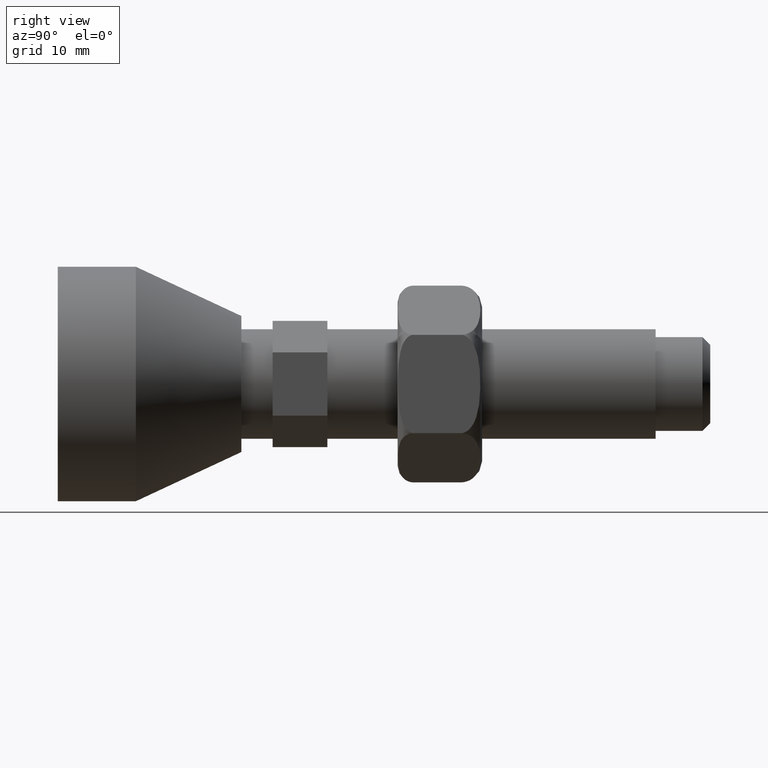
[diagram: clean part render]
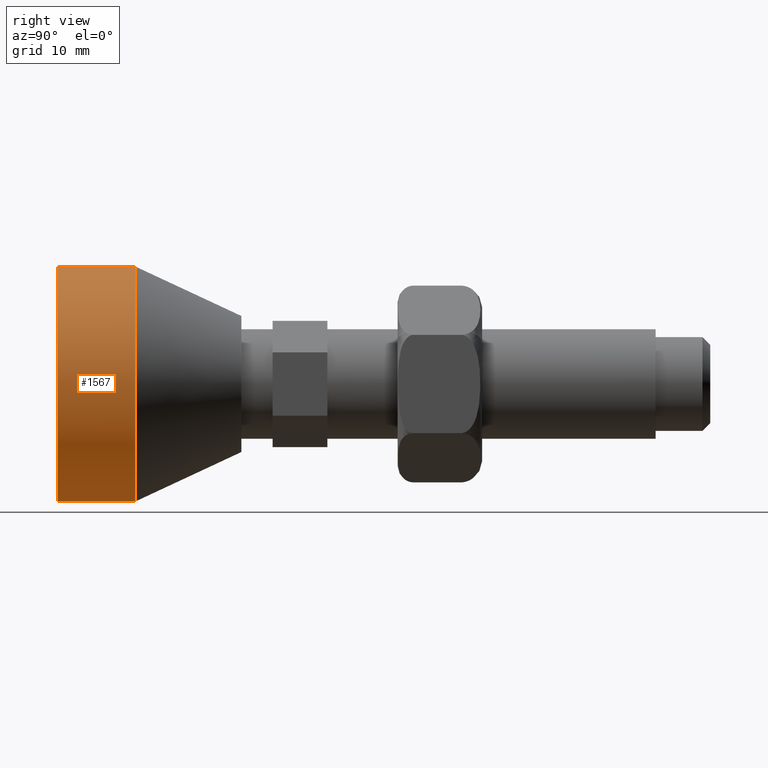
[diagram: same view with one face highlighted and labeled with its STEP entity id]
A machine part, right view. The second image highlights one B-rep face of the part: STEP entity #1567.
In plain terms, the highlighted cylindrical surface (partial cylindrical patch) has radius 15 mm, axis along (-0, -1, -0).
Its self-contained STEP definition (entity closure, byte-faithful):
#25 = ORIENTED_EDGE ( 'NONE', *, *, #472, .T. ) ;
#112 = LINE ( 'NONE', #1389, #113 ) ;
#113 = VECTOR ( 'NONE', #1249, 1000.000000000000000 ) ;
#115 = CIRCLE ( 'NONE', #1094, 15.00000000000000000 ) ;
#117 = CIRCLE ( 'NONE', #1092, 15.00000000000000000 ) ;
#136 = FACE_OUTER_BOUND ( 'NONE', #208, .T. ) ;
#137 = CYLINDRICAL_SURFACE ( 'NONE', #1043, 15.00000000000000000 ) ;
#207 = ORIENTED_EDGE ( 'NONE', *, *, #475, .F. ) ;
#208 = EDGE_LOOP ( 'NONE', ( #207, #224, #25, #1145 ) ) ;
#224 = ORIENTED_EDGE ( 'NONE', *, *, #471, .T. ) ;
#453 = EDGE_CURVE ( 'NONE', #1683, #1691, #533, .T. ) ;
#471 = EDGE_CURVE ( 'NONE', #1680, #1671, #112, .T. ) ;
#472 = EDGE_CURVE ( 'NONE', #1671, #1691, #115, .T. ) ;
#475 = EDGE_CURVE ( 'NONE', #1680, #1683, #117, .T. ) ;
#533 = LINE ( 'NONE', #1281, #534 ) ;
#534 = VECTOR ( 'NONE', #1395, 1000.000000000000000 ) ;
#594 = CARTESIAN_POINT ( 'NONE',  ( 0.0000000000000000000, 0.0000000000000000000, -15.00000000000000000 ) ) ;
#601 = CARTESIAN_POINT ( 'NONE',  ( 0.0000000000000000000, 10.00000000000000000, -15.00000000000000000 ) ) ;
#603 = CARTESIAN_POINT ( 'NONE',  ( 1.836970198721029600E-015, 10.00000000000000000, 15.00000000000000000 ) ) ;
#611 = CARTESIAN_POINT ( 'NONE',  ( 1.836970198721029600E-015, 0.0000000000000000000, 15.00000000000000000 ) ) ;
#877 = CARTESIAN_POINT ( 'NONE',  ( 0.0000000000000000000, 10.00000000000000000, 0.0000000000000000000 ) ) ;
#945 = DIRECTION ( 'NONE',  ( -0.0000000000000000000, -1.000000000000000000, -0.0000000000000000000 ) ) ;
#975 = DIRECTION ( 'NONE',  ( 0.0000000000000000000, 0.0000000000000000000, -1.000000000000000000 ) ) ;
#1043 = AXIS2_PLACEMENT_3D ( 'NONE', #877, #945, #975 ) ;
#1092 = AXIS2_PLACEMENT_3D ( 'NONE', #1307, #1218, #1247 ) ;
#1094 = AXIS2_PLACEMENT_3D ( 'NONE', #1366, #1255, #1385 ) ;
#1145 = ORIENTED_EDGE ( 'NONE', *, *, #453, .F. ) ;
#1218 = DIRECTION ( 'NONE',  ( 0.0000000000000000000, 1.000000000000000000, 0.0000000000000000000 ) ) ;
#1247 = DIRECTION ( 'NONE',  ( 0.0000000000000000000, 0.0000000000000000000, 1.000000000000000000 ) ) ;
#1249 = DIRECTION ( 'NONE',  ( -0.0000000000000000000, -1.000000000000000000, -0.0000000000000000000 ) ) ;
#1255 = DIRECTION ( 'NONE',  ( 0.0000000000000000000, 1.000000000000000000, 0.0000000000000000000 ) ) ;
#1281 = CARTESIAN_POINT ( 'NONE',  ( 0.0000000000000000000, 10.00000000000000000, -15.00000000000000000 ) ) ;
#1307 = CARTESIAN_POINT ( 'NONE',  ( 0.0000000000000000000, 10.00000000000000000, 0.0000000000000000000 ) ) ;
#1366 = CARTESIAN_POINT ( 'NONE',  ( 0.0000000000000000000, 0.0000000000000000000, 0.0000000000000000000 ) ) ;
#1385 = DIRECTION ( 'NONE',  ( 0.0000000000000000000, 0.0000000000000000000, 1.000000000000000000 ) ) ;
#1389 = CARTESIAN_POINT ( 'NONE',  ( 1.836970198721029600E-015, 10.00000000000000000, 15.00000000000000000 ) ) ;
#1395 = DIRECTION ( 'NONE',  ( -0.0000000000000000000, -1.000000000000000000, -0.0000000000000000000 ) ) ;
#1567 = ADVANCED_FACE ( 'NONE', ( #136 ), #137, .T. ) ;
#1671 = VERTEX_POINT ( 'NONE', #611 ) ;
#1680 = VERTEX_POINT ( 'NONE', #603 ) ;
#1683 = VERTEX_POINT ( 'NONE', #601 ) ;
#1691 = VERTEX_POINT ( 'NONE', #594 ) ;